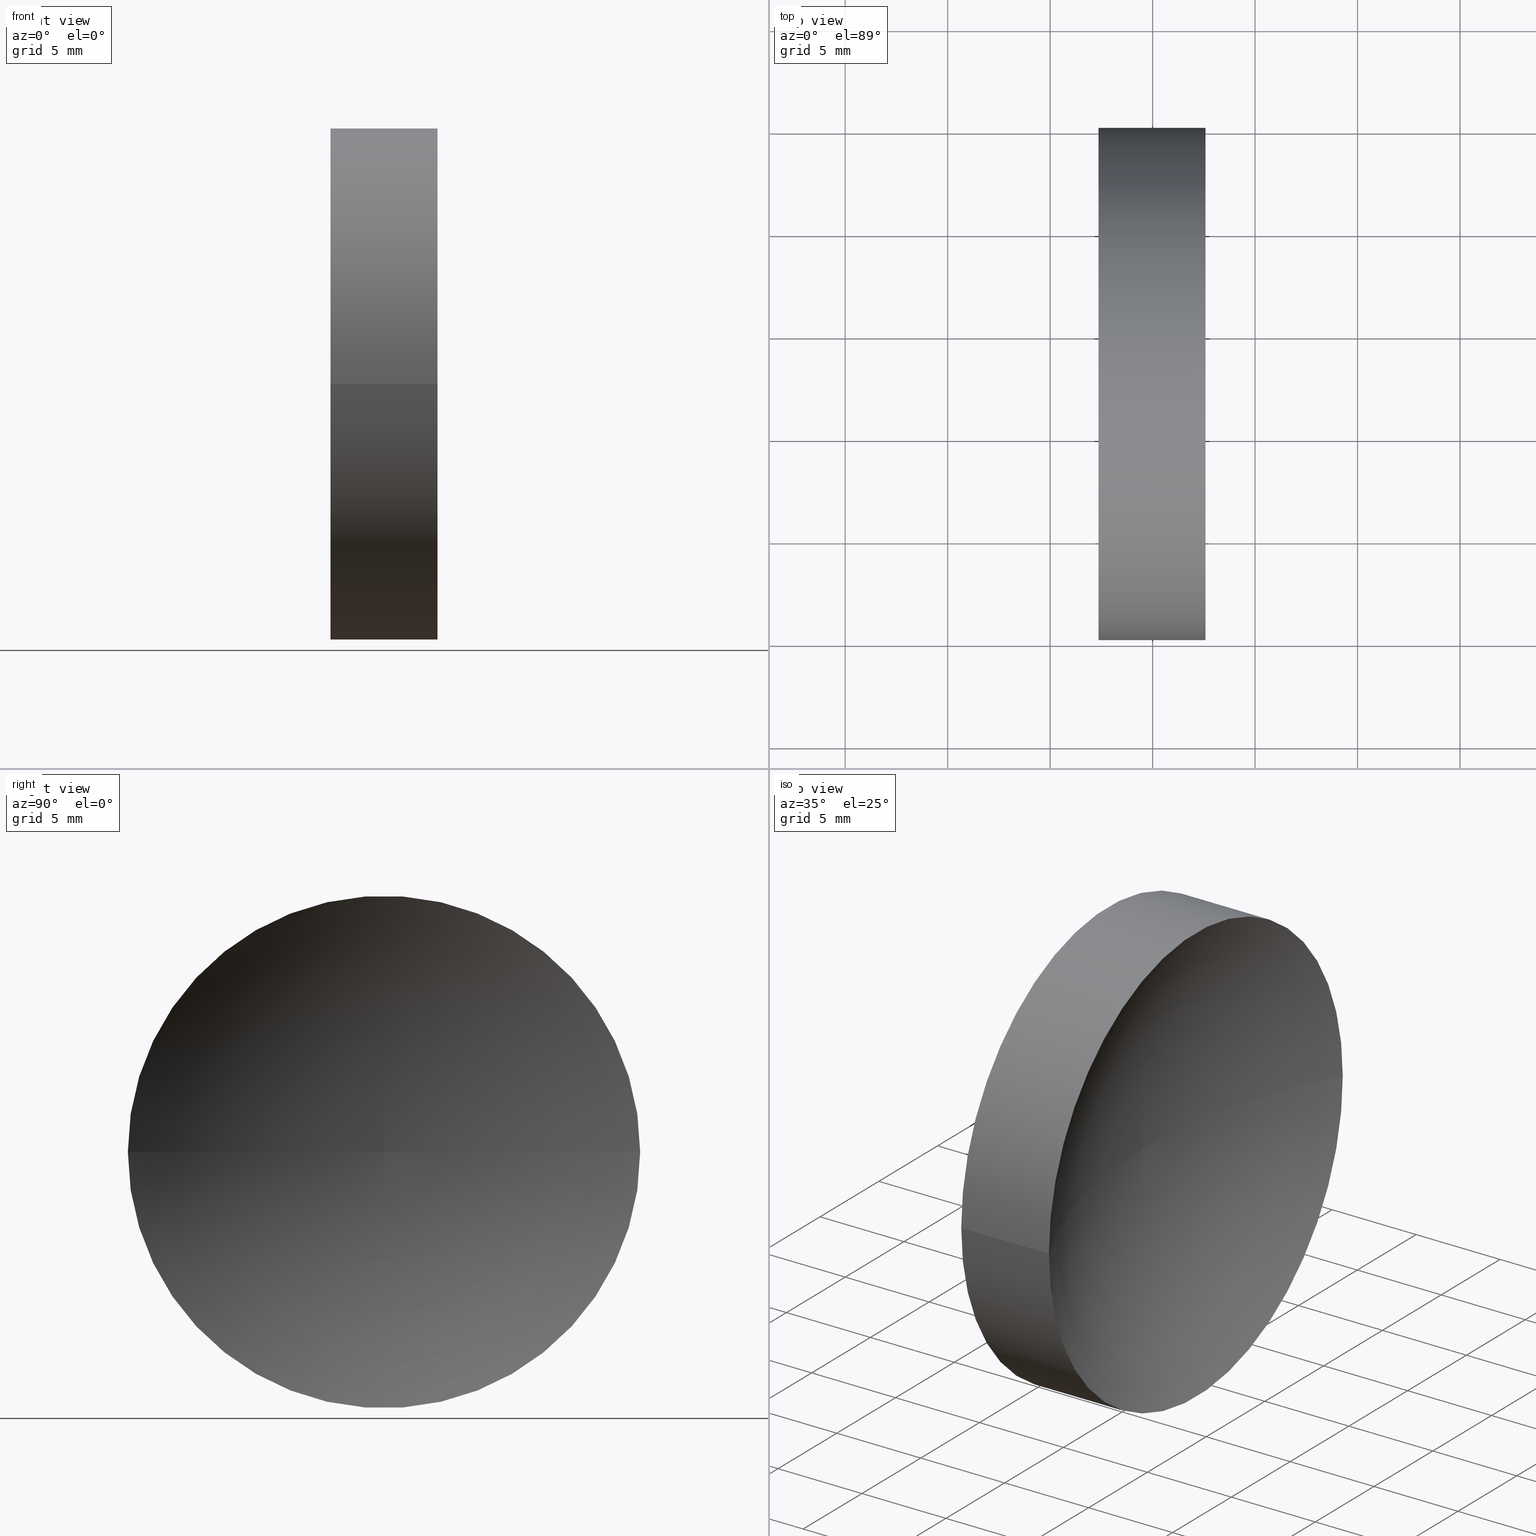
[diagram: canonical four-view strip — front | top / right | iso, engineering-drawing reading convention]
A machine part, canonical four-view strip (front | top / right | iso — engineering-drawing reading convention). The complete STEP part file that produces these views, byte-faithful:
ISO-10303-21;
HEADER;
FILE_DESCRIPTION (( 'STEP AP214' ),
    '1' );
FILE_NAME ('120152.STEP',
    '2019-06-20T06:04:43',
    ( '' ),
    ( '' ),
    'SwSTEP 2.0',
    'SolidWorks 2016',
    '' );
FILE_SCHEMA (( 'AUTOMOTIVE_DESIGN' ));
ENDSEC;

DATA;
#1 = CIRCLE ( 'NONE', #109, 25.83999999999999600 ) ;
#2 = PRODUCT_CONTEXT ( 'NONE', #89, 'mechanical' ) ;
#3 = FILL_AREA_STYLE ('',( #107 ) ) ;
#4 = CARTESIAN_POINT ( 'NONE',  ( 59.35819015806720200, 32.57872591329309800, 0.0000000000000000000 ) ) ;
#5 = CARTESIAN_POINT ( 'NONE',  ( 55.00739462442118800, 45.07872591329309800, 1.530808498934191900E-015 ) ) ;
#6 = EDGE_CURVE ( 'NONE', #164, #68, #114, .T. ) ;
#7 = FACE_OUTER_BOUND ( 'NONE', #82, .T. ) ;
#8 = DIRECTION ( 'NONE',  ( 0.0000000000000000000, -0.0000000000000000000, -1.000000000000000000 ) ) ;
#9 = DIRECTION ( 'NONE',  ( -1.000000000000000000, 4.853228644174421400E-016, -0.0000000000000000000 ) ) ;
#10 =( NAMED_UNIT ( * ) SI_UNIT ( $, .STERADIAN. ) SOLID_ANGLE_UNIT ( ) );
#11 = ORIENTED_EDGE ( 'NONE', *, *, #52, .F. ) ;
#12 = VERTEX_POINT ( 'NONE', #46 ) ;
#13 = CIRCLE ( 'NONE', #58, 25.83999999999999600 ) ;
#14 = EDGE_CURVE ( 'NONE', #164, #57, #13, .T. ) ;
#15 = AXIS2_PLACEMENT_3D ( 'NONE', #21, #134, #123 ) ;
#16 = CIRCLE ( 'NONE', #99, 12.49999999999999600 ) ;
#17 = DIRECTION ( 'NONE',  ( -1.000000000000000000, 4.853228644174421400E-016, -0.0000000000000000000 ) ) ;
#18 = CARTESIAN_POINT ( 'NONE',  ( 85.19819015802110600, 32.57877471879731200, 0.0000000000000000000 ) ) ;
#19 =( LENGTH_UNIT ( ) NAMED_UNIT ( * ) SI_UNIT ( .MILLI., .METRE. ) );
#20 = CARTESIAN_POINT ( 'NONE',  ( 62.58283298949485400, 45.07872591329309800, 1.530808498934192500E-015 ) ) ;
#21 = CARTESIAN_POINT ( 'NONE',  ( 57.35819015802111700, 32.57872591329309100, 0.0000000000000000000 ) ) ;
#22 = COLOUR_RGB ( '',1.000000000000000000, 1.000000000000000000, 1.000000000000000000 ) ;
#23 = ADVANCED_FACE ( 'NONE', ( #112 ), #118, .F. ) ;
#24 = SHAPE_DEFINITION_REPRESENTATION ( #160, #90 ) ;
#25 = APPLICATION_PROTOCOL_DEFINITION ( 'draft international standard', 'automotive_design', 1998, #115 ) ;
#26 = DIRECTION ( 'NONE',  ( 1.000000000000000000, 0.0000000000000000000, 0.0000000000000000000 ) ) ;
#27 = EDGE_LOOP ( 'NONE', ( #141, #83, #51, #147 ) ) ;
#28 = DIRECTION ( 'NONE',  ( -5.551115123125780700E-016, -1.000000000000000000, 0.0000000000000000000 ) ) ;
#29 = DIRECTION ( 'NONE',  ( -1.000000000000000000, 4.853228644174421400E-016, -0.0000000000000000000 ) ) ;
#30 = EDGE_CURVE ( 'NONE', #12, #68, #16, .T. ) ;
#31 = DIRECTION ( 'NONE',  ( -1.000000000000000000, 4.853228644174421400E-016, -0.0000000000000000000 ) ) ;
#32 = FACE_OUTER_BOUND ( 'NONE', #105, .T. ) ;
#33 = DIRECTION ( 'NONE',  ( -5.551115123125780700E-016, -1.000000000000000000, 0.0000000000000000000 ) ) ;
#34 = ORIENTED_EDGE ( 'NONE', *, *, #127, .T. ) ;
#35 = DIRECTION ( 'NONE',  ( -1.000000000000000000, 4.853228644174421400E-016, -0.0000000000000000000 ) ) ;
#36 = PRESENTATION_LAYER_ASSIGNMENT (  '', '', ( #128 ) ) ;
#37 = PRODUCT_RELATED_PRODUCT_CATEGORY ( 'part', '', ( #120 ) ) ;
#38 = UNCERTAINTY_MEASURE_WITH_UNIT (LENGTH_MEASURE( 1.000000000000000100E-005 ), #96, 'distance_accuracy_value', 'NONE');
#39 = ORIENTED_EDGE ( 'NONE', *, *, #30, .T. ) ;
#40 =( NAMED_UNIT ( * ) SI_UNIT ( $, .STERADIAN. ) SOLID_ANGLE_UNIT ( ) );
#41 = EDGE_CURVE ( 'NONE', #100, #12, #43, .T. ) ;
#42 =( NAMED_UNIT ( * ) SI_UNIT ( $, .STERADIAN. ) SOLID_ANGLE_UNIT ( ) );
#43 = LINE ( 'NONE', #5, #150 ) ;
#44 = ORIENTED_EDGE ( 'NONE', *, *, #41, .F. ) ;
#45 = AXIS2_PLACEMENT_3D ( 'NONE', #97, #9, #111 ) ;
#46 = CARTESIAN_POINT ( 'NONE',  ( 57.35819015802111700, 45.07872591329309100, 1.530808498934192300E-015 ) ) ;
#47 = DIRECTION ( 'NONE',  ( -5.551115123125784700E-016, -1.000000000000000000, 0.0000000000000000000 ) ) ;
#48 = DIRECTION ( 'NONE',  ( 0.0000000000000000000, -1.000000000000000000, 0.0000000000000000000 ) ) ;
#49 = DIRECTION ( 'NONE',  ( 0.0000000000000000000, -1.000000000000000000, -1.224646799147353000E-016 ) ) ;
#50 = AXIS2_PLACEMENT_3D ( 'NONE', #152, #31, #47 ) ;
#51 = ORIENTED_EDGE ( 'NONE', *, *, #127, .F. ) ;
#52 = EDGE_CURVE ( 'NONE', #164, #100, #85, .T. ) ;
#53 = PRODUCT_DEFINITION_FORMATION_WITH_SPECIFIED_SOURCE ( '�κ�', '', #120, .NOT_KNOWN. ) ;
#54 = AXIS2_PLACEMENT_3D ( 'NONE', #132, #91, #26 ) ;
#55 = SURFACE_SIDE_STYLE ('',( #84 ) ) ;
#56 = DIRECTION ( 'NONE',  ( -1.000000000000000000, 4.853228644174421400E-016, -0.0000000000000000000 ) ) ;
#57 = VERTEX_POINT ( 'NONE', #4 ) ;
#58 = AXIS2_PLACEMENT_3D ( 'NONE', #18, #8, #79 ) ;
#59 = PLANE ( 'NONE',  #15 ) ;
#60 = PRESENTATION_LAYER_ASSIGNMENT (  '', '', ( #137 ) ) ;
#61 = CARTESIAN_POINT ( 'NONE',  ( 62.58283298949485400, 20.07872591329307700, 0.0000000000000000000 ) ) ;
#62 = CLOSED_SHELL ( 'NONE', ( #66, #23, #156, #87, #139 ) ) ;
#63 = CYLINDRICAL_SURFACE ( 'NONE', #161, 12.50000000000000400 ) ;
#64 = ORIENTED_EDGE ( 'NONE', *, *, #14, .T. ) ;
#65 = PRODUCT_DEFINITION_CONTEXT ( 'detailed design', #115, 'design' ) ;
#66 = ADVANCED_FACE ( 'NONE', ( #76 ), #157, .T. ) ;
#67 = PRODUCT_DEFINITION ( 'δ֪', '', #53, #65 ) ;
#68 = VERTEX_POINT ( 'NONE', #77 ) ;
#69 = MANIFOLD_SOLID_BREP ( '��ת1', #62 ) ;
#70 = CARTESIAN_POINT ( 'NONE',  ( 55.00739462442118100, 32.57872591329309800, 0.0000000000000000000 ) ) ;
#71 = AXIS2_PLACEMENT_3D ( 'NONE', #95, #108, #48 ) ;
#72 = CARTESIAN_POINT ( 'NONE',  ( 85.19819015802110600, 32.57867710778885600, -5.976950453302504100E-021 ) ) ;
#73 = ORIENTED_EDGE ( 'NONE', *, *, #6, .T. ) ;
#74 = CIRCLE ( 'NONE', #50, 12.49999999999999600 ) ;
#75 = EDGE_LOOP ( 'NONE', ( #130, #11, #64 ) ) ;
#76 = FACE_OUTER_BOUND ( 'NONE', #27, .T. ) ;
#77 = CARTESIAN_POINT ( 'NONE',  ( 57.35819015802110200, 20.07872591329309800, 0.0000000000000000000 ) ) ;
#78 = VECTOR ( 'NONE', #131, 1000.000000000000000 ) ;
#79 = DIRECTION ( 'NONE',  ( -1.000000000000000000, 0.0000000000000000000, 0.0000000000000000000 ) ) ;
#80 = PRESENTATION_STYLE_ASSIGNMENT (( #81 ) ) ;
#81 = SURFACE_STYLE_USAGE ( .BOTH. , #136 ) ;
#82 = EDGE_LOOP ( 'NONE', ( #34, #39 ) ) ;
#83 = ORIENTED_EDGE ( 'NONE', *, *, #41, .T. ) ;
#84 = SURFACE_STYLE_FILL_AREA ( #3 ) ;
#85 = CIRCLE ( 'NONE', #143, 12.50000000000000700 ) ;
#86 = SURFACE_STYLE_FILL_AREA ( #145 ) ;
#87 = ADVANCED_FACE ( 'NONE', ( #32 ), #63, .T. ) ;
#88 = SURFACE_STYLE_USAGE ( .BOTH. , #55 ) ;
#89 = APPLICATION_CONTEXT ( 'automotive_design' ) ;
#90 = ADVANCED_BREP_SHAPE_REPRESENTATION ( '120152', ( #69, #54 ), #162 ) ;
#91 = DIRECTION ( 'NONE',  ( 0.0000000000000000000, 0.0000000000000000000, 1.000000000000000000 ) ) ;
#92 = ORIENTED_EDGE ( 'NONE', *, *, #163, .T. ) ;
#93 = FILL_AREA_STYLE_COLOUR ( '', #22 ) ;
#94 = DIRECTION ( 'NONE',  ( -5.551115123125784700E-016, -1.000000000000000000, 0.0000000000000000000 ) ) ;
#95 = CARTESIAN_POINT ( 'NONE',  ( 62.58283298949485400, 32.57872591329309100, 0.0000000000000000000 ) ) ;
#96 =( LENGTH_UNIT ( ) NAMED_UNIT ( * ) SI_UNIT ( .MILLI., .METRE. ) );
#97 = CARTESIAN_POINT ( 'NONE',  ( 85.19819015802110600, 32.57872591329308400, 0.0000000000000000000 ) ) ;
#98 =( GEOMETRIC_REPRESENTATION_CONTEXT ( 3 ) GLOBAL_UNCERTAINTY_ASSIGNED_CONTEXT ( ( #113 ) ) GLOBAL_UNIT_ASSIGNED_CONTEXT ( ( #101, #158, #42 ) ) REPRESENTATION_CONTEXT ( 'NONE', 'WORKASPACE' ) );
#99 = AXIS2_PLACEMENT_3D ( 'NONE', #119, #29, #94 ) ;
#100 = VERTEX_POINT ( 'NONE', #20 ) ;
#101 =( LENGTH_UNIT ( ) NAMED_UNIT ( * ) SI_UNIT ( .MILLI., .METRE. ) );
#102 = TOROIDAL_SURFACE ( 'NONE', #45, -4.880550422753637700E-005, 25.83999999999999600 ) ;
#103 = APPLICATION_PROTOCOL_DEFINITION ( 'draft international standard', 'automotive_design', 1998, #89 ) ;
#104 = DIRECTION ( 'NONE',  ( -1.000000000000000000, 4.853228644174421400E-016, -0.0000000000000000000 ) ) ;
#105 = EDGE_LOOP ( 'NONE', ( #44, #92, #73, #153 ) ) ;
#106 = ORIENTED_EDGE ( 'NONE', *, *, #14, .F. ) ;
#107 = FILL_AREA_STYLE_COLOUR ( '', #155 ) ;
#108 = DIRECTION ( 'NONE',  ( -1.000000000000000000, 4.853228644174421400E-016, -0.0000000000000000000 ) ) ;
#109 = AXIS2_PLACEMENT_3D ( 'NONE', #72, #124, #49 ) ;
#110 = CARTESIAN_POINT ( 'NONE',  ( 55.00739462442118100, 32.57872591329309800, 0.0000000000000000000 ) ) ;
#111 = DIRECTION ( 'NONE',  ( -4.853228644174421400E-016, -1.000000000000000000, 0.0000000000000000000 ) ) ;
#112 = FACE_OUTER_BOUND ( 'NONE', #166, .T. ) ;
#113 = UNCERTAINTY_MEASURE_WITH_UNIT (LENGTH_MEASURE( 1.000000000000000100E-005 ), #101, 'distance_accuracy_value', 'NONE');
#114 = LINE ( 'NONE', #121, #78 ) ;
#115 = APPLICATION_CONTEXT ( 'automotive_design' ) ;
#116 = EDGE_CURVE ( 'NONE', #100, #57, #1, .T. ) ;
#117 = CARTESIAN_POINT ( 'NONE',  ( 62.58283298949485400, 32.57872591329309100, 0.0000000000000000000 ) ) ;
#118 = TOROIDAL_SURFACE ( 'NONE', #126, -4.880550422753637700E-005, 25.83999999999999600 ) ;
#119 = CARTESIAN_POINT ( 'NONE',  ( 57.35819015802111000, 32.57872591329309800, 0.0000000000000000000 ) ) ;
#120 = PRODUCT ( '120152', '120152', '', ( #2 ) ) ;
#121 = CARTESIAN_POINT ( 'NONE',  ( 55.00739462442117400, 20.07872591329309100, 0.0000000000000000000 ) ) ;
#122 =( NAMED_UNIT ( * ) PLANE_ANGLE_UNIT ( ) SI_UNIT ( $, .RADIAN. ) );
#123 = DIRECTION ( 'NONE',  ( 4.853228644174421400E-016, 1.000000000000000000, 0.0000000000000000000 ) ) ;
#124 = DIRECTION ( 'NONE',  ( -5.943490924618453600E-032, -1.224646799147353200E-016, 1.000000000000000000 ) ) ;
#125 = PRESENTATION_STYLE_ASSIGNMENT (( #88 ) ) ;
#126 = AXIS2_PLACEMENT_3D ( 'NONE', #149, #159, #148 ) ;
#127 = EDGE_CURVE ( 'NONE', #68, #12, #74, .T. ) ;
#128 = STYLED_ITEM ( 'NONE', ( #125 ), #90 ) ;
#129 = CIRCLE ( 'NONE', #71, 12.50000000000000700 ) ;
#130 = ORIENTED_EDGE ( 'NONE', *, *, #116, .F. ) ;
#131 = DIRECTION ( 'NONE',  ( -1.000000000000000000, 4.853228644174421400E-016, -0.0000000000000000000 ) ) ;
#132 = CARTESIAN_POINT ( 'NONE',  ( 0.0000000000000000000, 0.0000000000000000000, 0.0000000000000000000 ) ) ;
#133 =( GEOMETRIC_REPRESENTATION_CONTEXT ( 3 ) GLOBAL_UNCERTAINTY_ASSIGNED_CONTEXT ( ( #38 ) ) GLOBAL_UNIT_ASSIGNED_CONTEXT ( ( #96, #122, #10 ) ) REPRESENTATION_CONTEXT ( 'NONE', 'WORKASPACE' ) );
#134 = DIRECTION ( 'NONE',  ( 1.000000000000000000, -4.853228644174421400E-016, 0.0000000000000000000 ) ) ;
#135 = ORIENTED_EDGE ( 'NONE', *, *, #163, .F. ) ;
#136 = SURFACE_SIDE_STYLE ('',( #86 ) ) ;
#137 = STYLED_ITEM ( 'NONE', ( #80 ), #69 ) ;
#138 = FACE_OUTER_BOUND ( 'NONE', #75, .T. ) ;
#139 = ADVANCED_FACE ( 'NONE', ( #7 ), #59, .F. ) ;
#140 = ORIENTED_EDGE ( 'NONE', *, *, #116, .T. ) ;
#141 = ORIENTED_EDGE ( 'NONE', *, *, #52, .T. ) ;
#142 = MECHANICAL_DESIGN_GEOMETRIC_PRESENTATION_REPRESENTATION (  '', ( #128 ), #98 ) ;
#143 = AXIS2_PLACEMENT_3D ( 'NONE', #117, #56, #144 ) ;
#144 = DIRECTION ( 'NONE',  ( 0.0000000000000000000, -1.000000000000000000, 0.0000000000000000000 ) ) ;
#145 = FILL_AREA_STYLE ('',( #93 ) ) ;
#146 = UNCERTAINTY_MEASURE_WITH_UNIT (LENGTH_MEASURE( 1.000000000000000100E-005 ), #19, 'distance_accuracy_value', 'NONE');
#147 = ORIENTED_EDGE ( 'NONE', *, *, #6, .F. ) ;
#148 = DIRECTION ( 'NONE',  ( -4.853228644174421400E-016, -1.000000000000000000, 0.0000000000000000000 ) ) ;
#149 = CARTESIAN_POINT ( 'NONE',  ( 85.19819015802110600, 32.57872591329308400, 0.0000000000000000000 ) ) ;
#150 = VECTOR ( 'NONE', #104, 1000.000000000000000 ) ;
#151 =( NAMED_UNIT ( * ) PLANE_ANGLE_UNIT ( ) SI_UNIT ( $, .RADIAN. ) );
#152 = CARTESIAN_POINT ( 'NONE',  ( 57.35819015802111000, 32.57872591329309800, 0.0000000000000000000 ) ) ;
#153 = ORIENTED_EDGE ( 'NONE', *, *, #30, .F. ) ;
#154 = MECHANICAL_DESIGN_GEOMETRIC_PRESENTATION_REPRESENTATION (  '', ( #137 ), #133 ) ;
#155 = COLOUR_RGB ( '',1.000000000000000000, 1.000000000000000000, 1.000000000000000000 ) ;
#156 = ADVANCED_FACE ( 'NONE', ( #138 ), #102, .F. ) ;
#157 = CYLINDRICAL_SURFACE ( 'NONE', #165, 12.50000000000000400 ) ;
#158 =( NAMED_UNIT ( * ) PLANE_ANGLE_UNIT ( ) SI_UNIT ( $, .RADIAN. ) );
#159 = DIRECTION ( 'NONE',  ( -1.000000000000000000, 4.853228644174421400E-016, -0.0000000000000000000 ) ) ;
#160 = PRODUCT_DEFINITION_SHAPE ( 'NONE', 'NONE',  #67 ) ;
#161 = AXIS2_PLACEMENT_3D ( 'NONE', #110, #35, #33 ) ;
#162 =( GEOMETRIC_REPRESENTATION_CONTEXT ( 3 ) GLOBAL_UNCERTAINTY_ASSIGNED_CONTEXT ( ( #146 ) ) GLOBAL_UNIT_ASSIGNED_CONTEXT ( ( #19, #151, #40 ) ) REPRESENTATION_CONTEXT ( 'NONE', 'WORKASPACE' ) );
#163 = EDGE_CURVE ( 'NONE', #100, #164, #129, .T. ) ;
#164 = VERTEX_POINT ( 'NONE', #61 ) ;
#165 = AXIS2_PLACEMENT_3D ( 'NONE', #70, #17, #28 ) ;
#166 = EDGE_LOOP ( 'NONE', ( #135, #140, #106 ) ) ;
ENDSEC;
END-ISO-10303-21;
